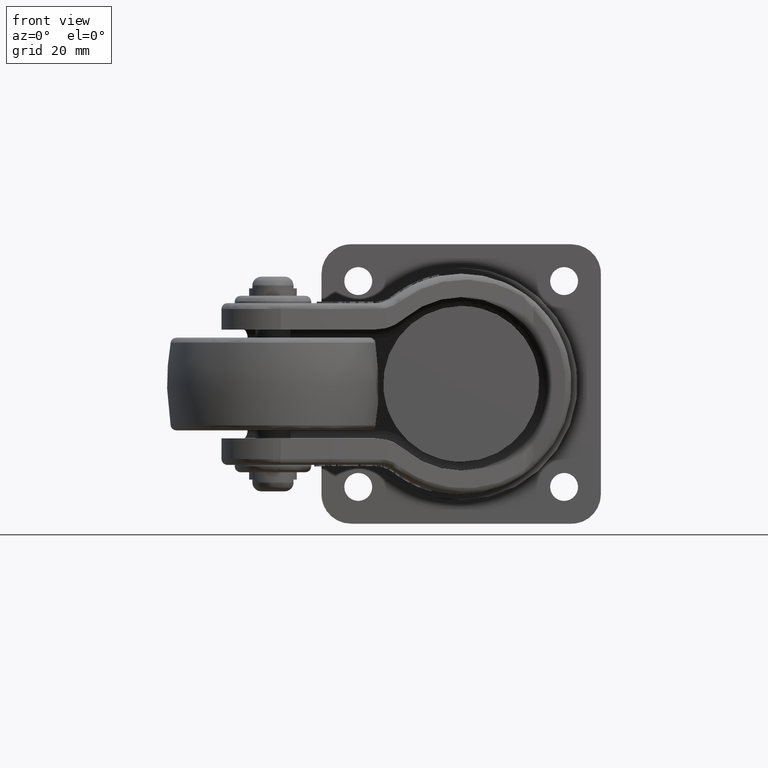
[diagram: clean part render]
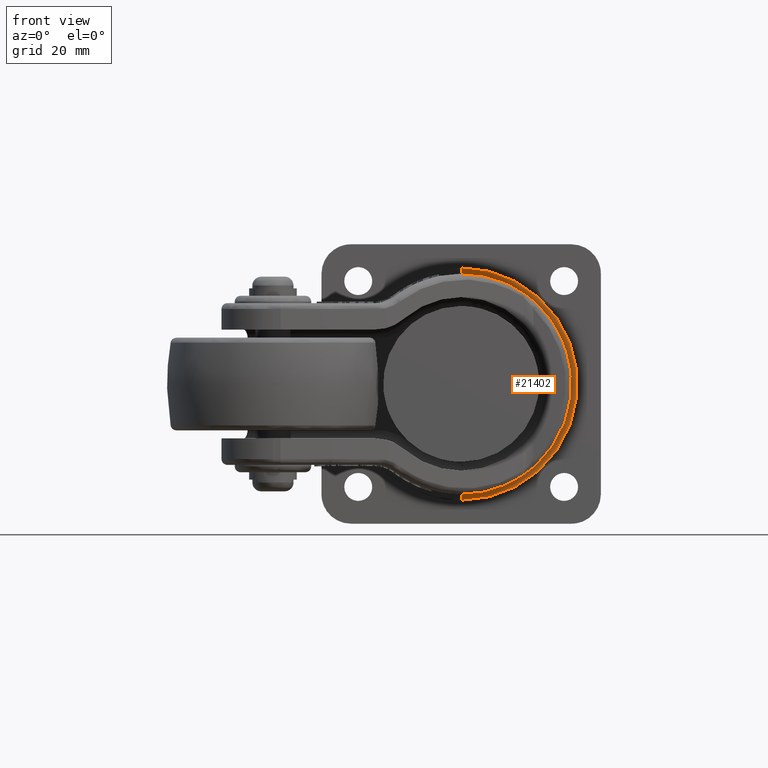
[diagram: same view with one face highlighted and labeled with its STEP entity id]
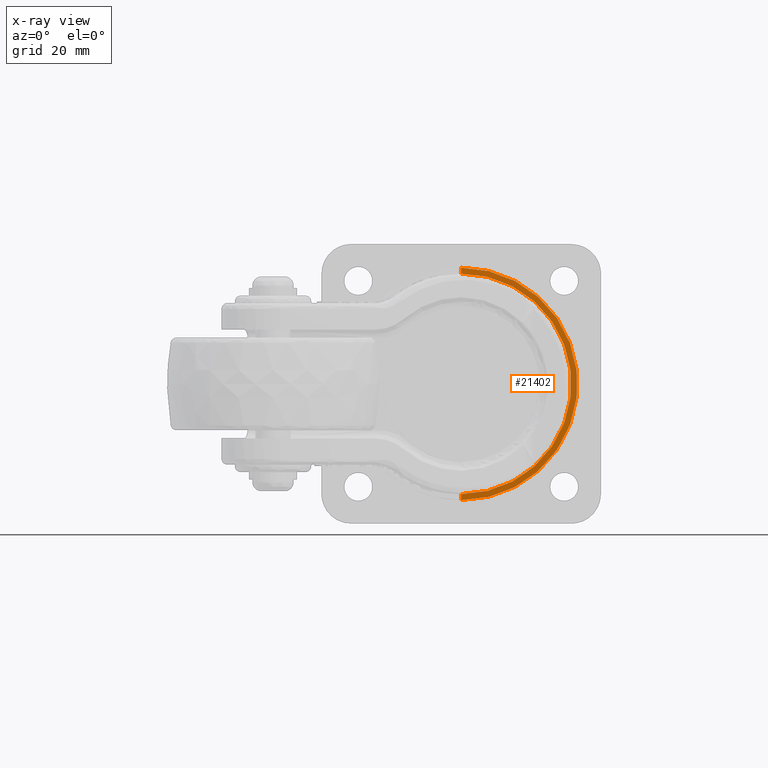
[diagram: x-ray of the same camera — body ghosted, the highlighted face saturated]
A machine part, front view. The second image highlights one B-rep face of the part: STEP entity #21402.
The next image is the same camera in x-ray: the body ghosted, the highlighted face saturated — about 1% of this face is hidden behind the body in this view.
In plain terms, the highlighted conical surface has half-angle 87.949 deg.
Its self-contained STEP definition (entity closure, byte-faithful):
#97 = EDGE_CURVE ( 'NONE', #24098, #17412, #3822, .T. ) ;
#462 = VECTOR ( 'NONE', #18315, 1000.000000000000114 ) ;
#628 = DIRECTION ( 'NONE',  ( 0.000000000000000000, 0.03578863194222924732, 0.9993593817159588388 ) ) ;
#1031 = CARTESIAN_POINT ( 'NONE',  ( 0.000000000000000000, 80.29999999999999716, 39.49999998040800619 ) ) ;
#1099 = CARTESIAN_POINT ( 'NONE',  ( 0.000000000000000000, 80.29999999999999716, 39.49999998040800619 ) ) ;
#2064 = ORIENTED_EDGE ( 'NONE', *, *, #31146, .F. ) ;
#3463 = CARTESIAN_POINT ( 'NONE',  ( 0.000000000000000000, 80.29999999999999716, 0.000000000000000000 ) ) ;
#3822 = LINE ( 'NONE', #27600, #462 ) ;
#4804 = ORIENTED_EDGE ( 'NONE', *, *, #97, .T. ) ;
#4992 = AXIS2_PLACEMENT_3D ( 'NONE', #31364, #7437, #9824 ) ;
#5779 = VERTEX_POINT ( 'NONE', #1031 ) ;
#6457 = ORIENTED_EDGE ( 'NONE', *, *, #21038, .T. ) ;
#6554 = AXIS2_PLACEMENT_3D ( 'NONE', #26277, #30916, #6677 ) ;
#6677 = DIRECTION ( 'NONE',  ( 0.000000000000000000, 0.000000000000000000, 1.000000000000000000 ) ) ;
#6714 = CARTESIAN_POINT ( 'NONE',  ( 4.837354854232717909E-15, 80.29999999999999716, -39.49999998040800619 ) ) ;
#7437 = DIRECTION ( 'NONE',  ( -0.000000000000000000, 1.000000000000000000, -0.000000000000000000 ) ) ;
#7843 = EDGE_LOOP ( 'NONE', ( #6457, #4804, #2064, #23776 ) ) ;
#8571 = DIRECTION ( 'NONE',  ( 0.000000000000000000, 0.000000000000000000, 1.000000000000000000 ) ) ;
#9824 = DIRECTION ( 'NONE',  ( 0.000000000000000000, 0.000000000000000000, 1.000000000000000000 ) ) ;
#12623 = AXIS2_PLACEMENT_3D ( 'NONE', #3463, #18116, #8571 ) ;
#12648 = CIRCLE ( 'NONE', #6554, 39.49999998040800619 ) ;
#14591 = CARTESIAN_POINT ( 'NONE',  ( 8.326672684688675315E-14, 80.22837685371963801, -37.50000000000000711 ) ) ;
#15413 = FACE_OUTER_BOUND ( 'NONE', #7843, .T. ) ;
#15586 = LINE ( 'NONE', #1099, #28411 ) ;
#15773 = EDGE_CURVE ( 'NONE', #29755, #5779, #15586, .T. ) ;
#17412 = VERTEX_POINT ( 'NONE', #6714 ) ;
#18116 = DIRECTION ( 'NONE',  ( -0.000000000000000000, 1.000000000000000000, -0.000000000000000000 ) ) ;
#18315 = DIRECTION ( 'NONE',  ( 1.223862268016326983E-16, 0.03578863194222924732, -0.9993593817159588388 ) ) ;
#21038 = EDGE_CURVE ( 'NONE', #29755, #24098, #26377, .T. ) ;
#21402 = ADVANCED_FACE ( 'NONE', ( #15413 ), #22800, .T. ) ;
#22800 = CONICAL_SURFACE ( 'NONE', #12623, 39.49999998040800619, 1.535000050609820477 ) ;
#23478 = CARTESIAN_POINT ( 'NONE',  ( 0.000000000000000000, 80.22837685371963801, 37.50000000000000000 ) ) ;
#23776 = ORIENTED_EDGE ( 'NONE', *, *, #15773, .F. ) ;
#24098 = VERTEX_POINT ( 'NONE', #14591 ) ;
#26277 = CARTESIAN_POINT ( 'NONE',  ( 0.000000000000000000, 80.29999999999999716, 0.000000000000000000 ) ) ;
#26377 = CIRCLE ( 'NONE', #4992, 37.50000000000000000 ) ;
#27600 = CARTESIAN_POINT ( 'NONE',  ( 4.837354854232717909E-15, 80.29999999999999716, -39.49999998040800619 ) ) ;
#28411 = VECTOR ( 'NONE', #628, 1000.000000000000114 ) ;
#29755 = VERTEX_POINT ( 'NONE', #23478 ) ;
#30916 = DIRECTION ( 'NONE',  ( -0.000000000000000000, 1.000000000000000000, -0.000000000000000000 ) ) ;
#31146 = EDGE_CURVE ( 'NONE', #5779, #17412, #12648, .T. ) ;
#31364 = CARTESIAN_POINT ( 'NONE',  ( 0.000000000000000000, 80.22837685371963801, 0.000000000000000000 ) ) ;